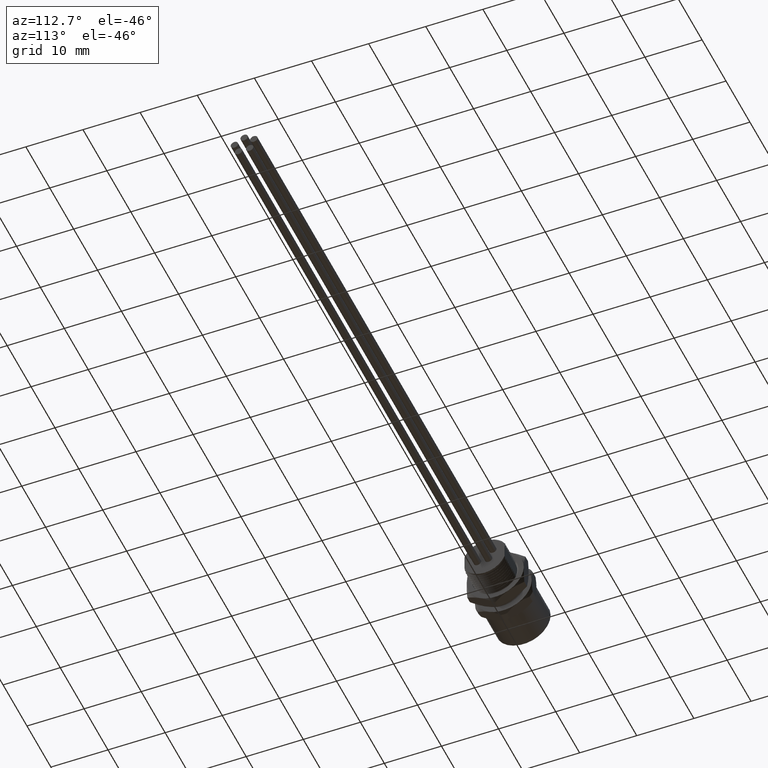
[diagram: clean part render]
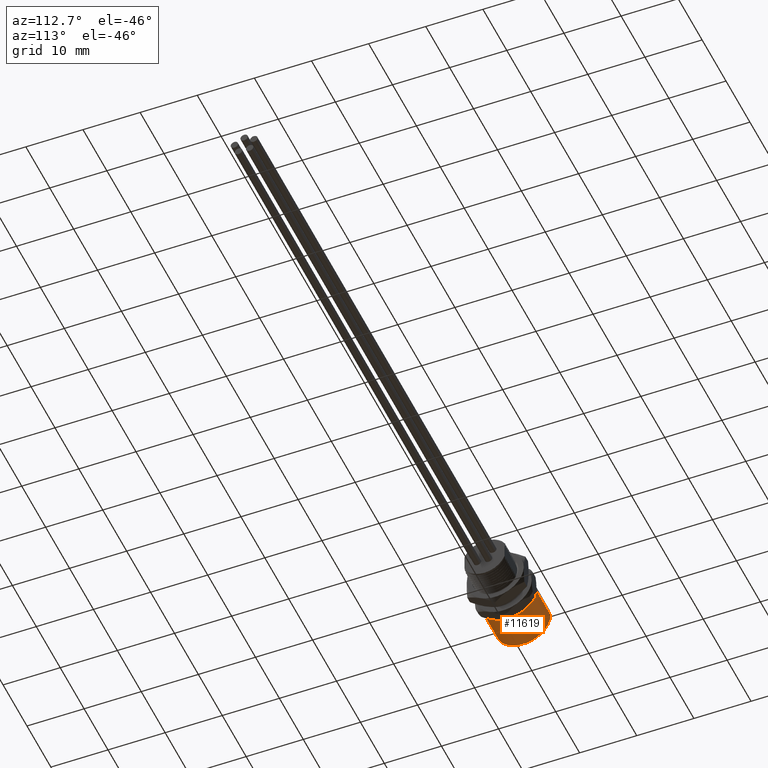
[diagram: same view with one face highlighted and labeled with its STEP entity id]
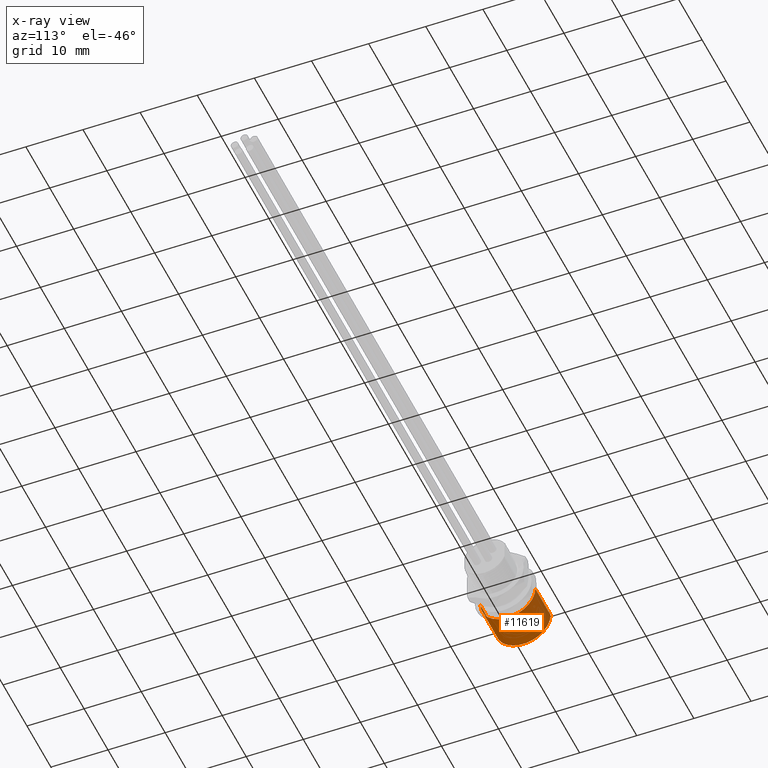
[diagram: x-ray of the same camera — body ghosted, the highlighted face saturated]
A machine part, auxiliary view. The second image highlights one B-rep face of the part: STEP entity #11619.
The next image is the same camera in x-ray: the body ghosted, the highlighted face saturated — about 0% of this face is hidden behind the body in this view.
In plain terms, the highlighted cylindrical surface (edge-blend (fillet) strip) has radius 4.8 mm, axis along (1, 0, 0).
Its self-contained STEP definition (entity closure, byte-faithful):
#1011=CARTESIAN_POINT('',(-2.519685039370E-1,0.E0,0.E0));
#1012=DIRECTION('',(-1.E0,0.E0,0.E0));
#1013=DIRECTION('',(0.E0,1.E0,0.E0));
#1014=AXIS2_PLACEMENT_3D('',#1011,#1012,#1013);
#1016=DIRECTION('',(-1.E0,6.226948644178E-12,-1.277709867949E-10));
#1017=VECTOR('',#1016,2.519685039386E-1);
#1018=CARTESIAN_POINT('',(0.E0,-1.889763779528E-1,0.E0));
#1019=LINE('',#1018,#1017);
#1020=CARTESIAN_POINT('',(0.E0,0.E0,0.E0));
#1021=DIRECTION('',(-1.E0,0.E0,0.E0));
#1022=DIRECTION('',(0.E0,1.E0,0.E0));
#1023=AXIS2_PLACEMENT_3D('',#1020,#1021,#1022);
#1025=DIRECTION('',(-1.E0,-6.226948644178E-12,1.277709638328E-10));
#1026=VECTOR('',#1025,2.519685039386E-1);
#1027=CARTESIAN_POINT('',(0.E0,1.889763779528E-1,0.E0));
#1028=LINE('',#1027,#1026);
#9524=CARTESIAN_POINT('',(0.E0,1.889763779528E-1,0.E0));
#9525=CARTESIAN_POINT('',(0.E0,-1.889763779528E-1,0.E0));
#9526=VERTEX_POINT('',#9524);
#9527=VERTEX_POINT('',#9525);
#9604=CARTESIAN_POINT('',(-2.519685039370E-1,-1.889763779528E-1,0.E0));
#9605=CARTESIAN_POINT('',(-2.519685039370E-1,1.889763779528E-1,0.E0));
#9606=VERTEX_POINT('',#9604);
#9607=VERTEX_POINT('',#9605);
#11608=CARTESIAN_POINT('',(-2.962598425197E-1,0.E0,0.E0));
#11609=DIRECTION('',(1.E0,0.E0,0.E0));
#11610=DIRECTION('',(0.E0,-1.E0,0.E0));
#11611=AXIS2_PLACEMENT_3D('',#11608,#11609,#11610);
#11612=CYLINDRICAL_SURFACE('',#11611,1.889763779528E-1);
#11613=ORIENTED_EDGE('',*,*,#11602,.T.);
#11614=ORIENTED_EDGE('',*,*,#11558,.F.);
#11615=ORIENTED_EDGE('',*,*,#11287,.F.);
#11616=ORIENTED_EDGE('',*,*,#11555,.T.);
#11617=EDGE_LOOP('',(#11613,#11614,#11615,#11616));
#11618=FACE_OUTER_BOUND('',#11617,.F.);
#11619=ADVANCED_FACE('',(#11618),#11612,.T.);
#1015=CIRCLE('',#1014,1.889763779528E-1);
#1024=CIRCLE('',#1023,1.889763779528E-1);
#11287=EDGE_CURVE('',#9526,#9527,#1024,.T.);
#11555=EDGE_CURVE('',#9526,#9607,#1028,.T.);
#11558=EDGE_CURVE('',#9527,#9606,#1019,.T.);
#11602=EDGE_CURVE('',#9607,#9606,#1015,.T.);